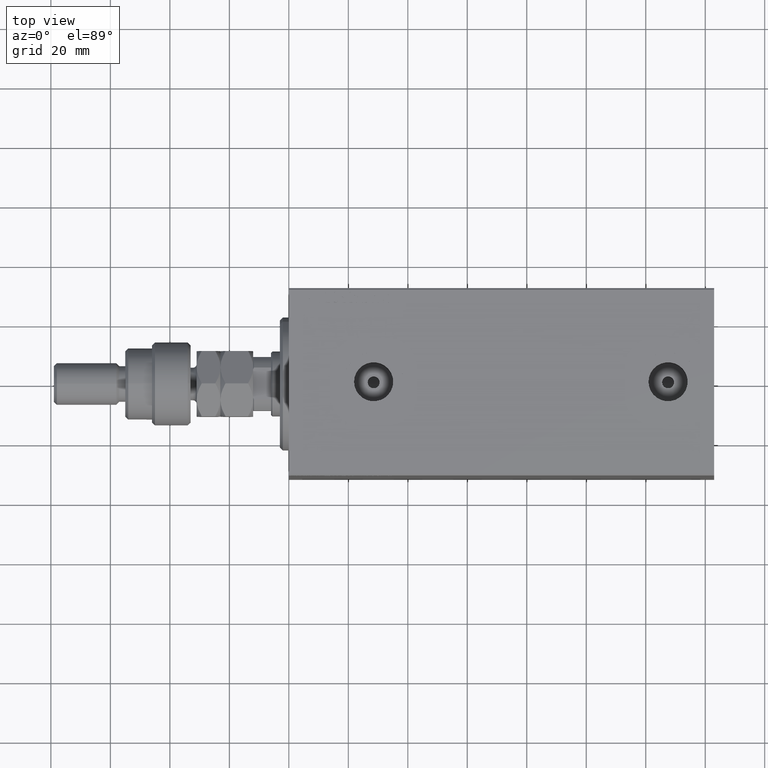
[diagram: clean part render]
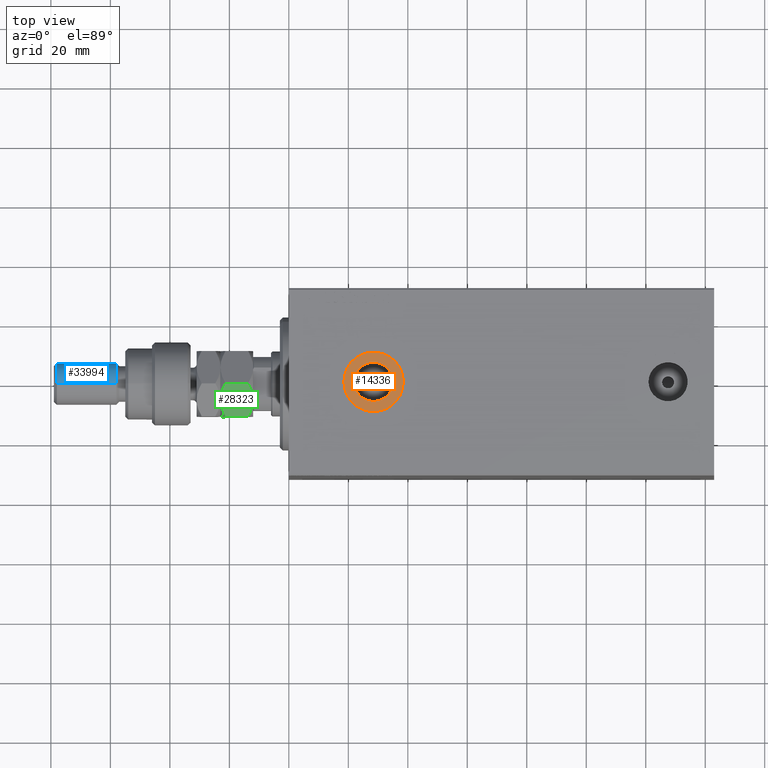
[diagram: same view with three faces highlighted in distinct colors, each labeled with its STEP entity id]
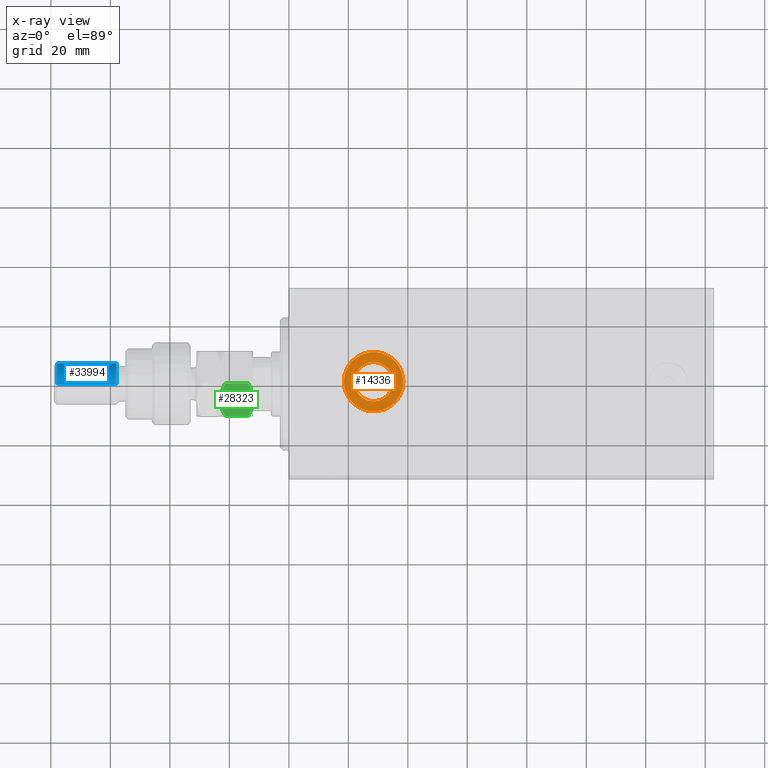
[diagram: x-ray of the same camera — body ghosted, the three highlighted faces saturated]
A machine part, top view with three faces highlighted in distinct colors.
The next image is the same camera in x-ray (body ghosted, the three faces saturated) — at least one of them is partly hidden behind the body in this view.
Their STEP definitions:

[orange] entity #14336 — the highlighted planar face has unit normal (0, 0, 1).
#770 = CARTESIAN_POINT ( 'NONE',  ( 38.50000000000000000, -9.361999711620864936E-15, 42.39999999999999858 ) ) ;
#2456 = DIRECTION ( 'NONE',  ( 1.000000000000000000, 0.000000000000000000, 0.000000000000000000 ) ) ;
#4035 = FACE_OUTER_BOUND ( 'NONE', #14010, .T. ) ;
#4494 = VERTEX_POINT ( 'NONE', #17192 ) ;
#5531 = AXIS2_PLACEMENT_3D ( 'NONE', #45575, #27583, #42022 ) ;
#6486 = DIRECTION ( 'NONE',  ( 0.000000000000000000, 0.000000000000000000, 1.000000000000000000 ) ) ;
#6608 = ORIENTED_EDGE ( 'NONE', *, *, #14099, .T. ) ;
#7358 = ORIENTED_EDGE ( 'NONE', *, *, #24527, .T. ) ;
#8112 = CARTESIAN_POINT ( 'NONE',  ( 28.50000000000000000, -9.361999711620864936E-15, 42.39999999999999858 ) ) ;
#8467 = VERTEX_POINT ( 'NONE', #37358 ) ;
#9058 = ORIENTED_EDGE ( 'NONE', *, *, #19942, .F. ) ;
#9335 = CARTESIAN_POINT ( 'NONE',  ( 28.50000000000000000, -9.361999711620864936E-15, 42.39999999999999858 ) ) ;
#11070 = VERTEX_POINT ( 'NONE', #770 ) ;
#13232 = DIRECTION ( 'NONE',  ( 1.000000000000000000, 0.000000000000000000, 0.000000000000000000 ) ) ;
#14010 = EDGE_LOOP ( 'NONE', ( #6608, #7358 ) ) ;
#14099 = EDGE_CURVE ( 'NONE', #11070, #4494, #33862, .T. ) ;
#14336 = ADVANCED_FACE ( 'NONE', ( #25356, #4035 ), #14701, .T. ) ;
#14701 = PLANE ( 'NONE',  #17996 ) ;
#17192 = CARTESIAN_POINT ( 'NONE',  ( 18.50000000000000355, -8.137352912473510299E-15, 42.39999999999999858 ) ) ;
#17996 = AXIS2_PLACEMENT_3D ( 'NONE', #21586, #42892, #29140 ) ;
#19003 = ORIENTED_EDGE ( 'NONE', *, *, #39466, .F. ) ;
#19720 = DIRECTION ( 'NONE',  ( 1.000000000000000000, 0.000000000000000000, 0.000000000000000000 ) ) ;
#19942 = EDGE_CURVE ( 'NONE', #8467, #29719, #28636, .T. ) ;
#20644 = CIRCLE ( 'NONE', #5531, 6.579999999999999183 ) ;
#20818 = DIRECTION ( 'NONE',  ( 0.000000000000000000, 0.000000000000000000, 1.000000000000000000 ) ) ;
#21586 = CARTESIAN_POINT ( 'NONE',  ( 28.50000000000000000, -9.361999711620864936E-15, 42.39999999999999858 ) ) ;
#24527 = EDGE_CURVE ( 'NONE', #4494, #11070, #29523, .T. ) ;
#25005 = AXIS2_PLACEMENT_3D ( 'NONE', #45673, #20818, #13232 ) ;
#25356 = FACE_BOUND ( 'NONE', #31003, .T. ) ;
#25608 = AXIS2_PLACEMENT_3D ( 'NONE', #9335, #6486, #2456 ) ;
#27583 = DIRECTION ( 'NONE',  ( 0.000000000000000000, 0.000000000000000000, 1.000000000000000000 ) ) ;
#28636 = CIRCLE ( 'NONE', #25608, 6.579999999999999183 ) ;
#29140 = DIRECTION ( 'NONE',  ( 1.000000000000000000, 0.000000000000000000, -0.000000000000000000 ) ) ;
#29523 = CIRCLE ( 'NONE', #25005, 9.999999999999998224 ) ;
#29659 = DIRECTION ( 'NONE',  ( 0.000000000000000000, 0.000000000000000000, 1.000000000000000000 ) ) ;
#29719 = VERTEX_POINT ( 'NONE', #35967 ) ;
#31003 = EDGE_LOOP ( 'NONE', ( #19003, #9058 ) ) ;
#32358 = AXIS2_PLACEMENT_3D ( 'NONE', #8112, #29659, #19720 ) ;
#33862 = CIRCLE ( 'NONE', #32358, 9.999999999999998224 ) ;
#35967 = CARTESIAN_POINT ( 'NONE',  ( 35.07999999999999829, -9.361999711620864936E-15, 42.39999999999999858 ) ) ;
#37358 = CARTESIAN_POINT ( 'NONE',  ( 21.92000000000000171, -8.556182117781907472E-15, 42.39999999999999858 ) ) ;
#39466 = EDGE_CURVE ( 'NONE', #29719, #8467, #20644, .T. ) ;
#42022 = DIRECTION ( 'NONE',  ( 1.000000000000000000, 0.000000000000000000, 0.000000000000000000 ) ) ;
#42892 = DIRECTION ( 'NONE',  ( 0.000000000000000000, 0.000000000000000000, 1.000000000000000000 ) ) ;
#45575 = CARTESIAN_POINT ( 'NONE',  ( 28.50000000000000000, -9.361999711620864936E-15, 42.39999999999999858 ) ) ;
#45673 = CARTESIAN_POINT ( 'NONE',  ( 28.50000000000000000, -9.361999711620864936E-15, 42.39999999999999858 ) ) ;

[blue] entity #33994 — the highlighted cylindrical surface (edge-blend (fillet) strip) has radius 7 mm, axis along (1, -0, -0).
#372 = EDGE_CURVE ( 'NONE', #41653, #39855, #21516, .T. ) ;
#1115 = CARTESIAN_POINT ( 'NONE',  ( 0.000000000000000000, 0.000000000000000000, 46.00000000000000000 ) ) ;
#1285 = AXIS2_PLACEMENT_3D ( 'NONE', #5839, #39841, #33203 ) ;
#1349 = DIRECTION ( 'NONE',  ( -1.000000000000000000, 0.000000000000000000, 0.000000000000000000 ) ) ;
#1606 = CARTESIAN_POINT ( 'NONE',  ( -7.000000000000000000, 0.000000000000000000, 44.99999999999999289 ) ) ;
#3480 = ORIENTED_EDGE ( 'NONE', *, *, #11058, .T. ) ;
#5839 = CARTESIAN_POINT ( 'NONE',  ( 0.000000000000000000, 0.000000000000000000, 44.99999999999999289 ) ) ;
#6246 = AXIS2_PLACEMENT_3D ( 'NONE', #1115, #11766, #1349 ) ;
#6472 = DIRECTION ( 'NONE',  ( -0.000000000000000000, -0.000000000000000000, -1.000000000000000000 ) ) ;
#7701 = VERTEX_POINT ( 'NONE', #1606 ) ;
#7805 = ORIENTED_EDGE ( 'NONE', *, *, #23094, .F. ) ;
#11058 = EDGE_CURVE ( 'NONE', #7701, #35657, #40583, .T. ) ;
#11766 = DIRECTION ( 'NONE',  ( -0.000000000000000000, -0.000000000000000000, -1.000000000000000000 ) ) ;
#15224 = EDGE_LOOP ( 'NONE', ( #3480, #40184, #38627, #7805 ) ) ;
#15801 = CYLINDRICAL_SURFACE ( 'NONE', #6246, 7.000000000000000000 ) ;
#16301 = CARTESIAN_POINT ( 'NONE',  ( -7.000000000000000000, 0.000000000000000000, 24.99999999999998934 ) ) ;
#20455 = CARTESIAN_POINT ( 'NONE',  ( -7.000000000000000000, 0.000000000000000000, 46.00000000000000000 ) ) ;
#21516 = CIRCLE ( 'NONE', #32852, 7.000000000000000000 ) ;
#22505 = CARTESIAN_POINT ( 'NONE',  ( 7.000000000000000000, 8.572527594031473190E-16, 44.99999999999999289 ) ) ;
#23094 = EDGE_CURVE ( 'NONE', #7701, #39855, #35348, .T. ) ;
#24687 = CARTESIAN_POINT ( 'NONE',  ( 0.000000000000000000, 0.000000000000000000, 24.99999999999998934 ) ) ;
#25327 = LINE ( 'NONE', #43323, #25991 ) ;
#25991 = VECTOR ( 'NONE', #46175, 1000.000000000000000 ) ;
#30465 = FACE_OUTER_BOUND ( 'NONE', #15224, .T. ) ;
#30992 = VECTOR ( 'NONE', #6472, 1000.000000000000000 ) ;
#32852 = AXIS2_PLACEMENT_3D ( 'NONE', #24687, #36491, #40047 ) ;
#33203 = DIRECTION ( 'NONE',  ( 1.000000000000000000, 0.000000000000000000, 0.000000000000000000 ) ) ;
#33994 = ADVANCED_FACE ( 'NONE', ( #30465 ), #15801, .T. ) ;
#35348 = LINE ( 'NONE', #20455, #30992 ) ;
#35657 = VERTEX_POINT ( 'NONE', #22505 ) ;
#36491 = DIRECTION ( 'NONE',  ( -0.000000000000000000, -0.000000000000000000, 1.000000000000000000 ) ) ;
#38627 = ORIENTED_EDGE ( 'NONE', *, *, #372, .T. ) ;
#39841 = DIRECTION ( 'NONE',  ( 0.000000000000000000, 0.000000000000000000, -1.000000000000000000 ) ) ;
#39855 = VERTEX_POINT ( 'NONE', #16301 ) ;
#40047 = DIRECTION ( 'NONE',  ( 1.000000000000000000, 0.000000000000000000, 0.000000000000000000 ) ) ;
#40184 = ORIENTED_EDGE ( 'NONE', *, *, #41911, .T. ) ;
#40583 = CIRCLE ( 'NONE', #1285, 7.000000000000000000 ) ;
#40750 = CARTESIAN_POINT ( 'NONE',  ( 7.000000000000000000, 8.572527594031473190E-16, 24.99999999999998934 ) ) ;
#41653 = VERTEX_POINT ( 'NONE', #40750 ) ;
#41911 = EDGE_CURVE ( 'NONE', #35657, #41653, #25327, .T. ) ;
#43323 = CARTESIAN_POINT ( 'NONE',  ( 7.000000000000000000, 8.572527594031473190E-16, 46.00000000000000000 ) ) ;
#46175 = DIRECTION ( 'NONE',  ( -0.000000000000000000, -0.000000000000000000, -1.000000000000000000 ) ) ;

[green] entity #28323 — the highlighted planar face has unit normal (0, 0.5, -0.866).
#175 = CARTESIAN_POINT ( 'NONE',  ( 11.00000000000000000, 2.205563362884370715, 0.2057656002039678633 ) ) ;
#3726 = CARTESIAN_POINT ( 'NONE',  ( 10.99999999999999822, 4.323029509133802684, 0.8096537352537666044 ) ) ;
#4737 = CARTESIAN_POINT ( 'NONE',  ( 11.00000000000000178, 4.344649988696087206, 10.21806660778910114 ) ) ;
#5301 = EDGE_CURVE ( 'NONE', #41330, #41789, #40258, .T. ) ;
#5675 = VERTEX_POINT ( 'NONE', #39316 ) ;
#6010 = CARTESIAN_POINT ( 'NONE',  ( 11.00000000000000000, -0.2746235576716405391, 11.00000000000000355 ) ) ;
#6238 = CARTESIAN_POINT ( 'NONE',  ( 11.00000000000000178, -0.5501206218979368678, 10.98970138300551191 ) ) ;
#6473 = CARTESIAN_POINT ( 'NONE',  ( 11.00000000000000178, -5.349315167928747172, 9.777295308501312121 ) ) ;
#7279 = CARTESIAN_POINT ( 'NONE',  ( 11.00000000000000000, 6.350852961085883486, 1.701705922171761198 ) ) ;
#7403 = VECTOR ( 'NONE', #18779, 1000.000000000000000 ) ;
#7853 = CARTESIAN_POINT ( 'NONE',  ( 11.00000000000000000, 0.000000000000000000, 0.000000000000000000 ) ) ;
#8926 = CARTESIAN_POINT ( 'NONE',  ( 11.00000000000000000, 6.350852961085883486, 9.298294077828240134 ) ) ;
#8933 = EDGE_CURVE ( 'NONE', #17284, #5675, #46805, .T. ) ;
#9497 = CARTESIAN_POINT ( 'NONE',  ( 10.99999999999999467, 0.000000000000000000, 11.00000000000000000 ) ) ;
#11513 = CARTESIAN_POINT ( 'NONE',  ( 11.00000000000000000, 1.102880524211967916, 0.05171427369706949051 ) ) ;
#11606 = CARTESIAN_POINT ( 'NONE',  ( 11.00000000000000178, 1.099784029505284533, 10.95829822225798189 ) ) ;
#12340 = CARTESIAN_POINT ( 'NONE',  ( 10.99999999999999822, -0.5516605423237674888, 3.811648262644349985E-18 ) ) ;
#12616 = EDGE_CURVE ( 'NONE', #5675, #39952, #43726, .T. ) ;
#13104 = CARTESIAN_POINT ( 'NONE',  ( 10.99999999999999822, -2.205563362884370271, 10.79423439979603039 ) ) ;
#14009 = EDGE_CURVE ( 'NONE', #38337, #17284, #32304, .T. ) ;
#14035 = CARTESIAN_POINT ( 'NONE',  ( 11.00000000000000000, -6.350852961085885262, 11.00000000000000000 ) ) ;
#14221 = ORIENTED_EDGE ( 'NONE', *, *, #12616, .F. ) ;
#15865 = ORIENTED_EDGE ( 'NONE', *, *, #14009, .F. ) ;
#16437 = CARTESIAN_POINT ( 'NONE',  ( 11.00000000000000000, -6.350852961085885262, 9.298294077828238358 ) ) ;
#17284 = VERTEX_POINT ( 'NONE', #27571 ) ;
#17643 = DIRECTION ( 'NONE',  ( 0.000000000000000000, 0.000000000000000000, 1.000000000000000000 ) ) ;
#18177 = CARTESIAN_POINT ( 'NONE',  ( 11.00000000000000000, 3.802713407336413276, 0.6276910765349043020 ) ) ;
#18291 = DIRECTION ( 'NONE',  ( -0.000000000000000000, -0.000000000000000000, -1.000000000000000000 ) ) ;
#18548 = CARTESIAN_POINT ( 'NONE',  ( 11.00000000000000000, 6.350852961085883486, 11.00000000000000000 ) ) ;
#18652 = ORIENTED_EDGE ( 'NONE', *, *, #5301, .F. ) ;
#18779 = DIRECTION ( 'NONE',  ( -0.000000000000000000, -0.000000000000000000, -1.000000000000000000 ) ) ;
#19455 = CARTESIAN_POINT ( 'NONE',  ( 11.00000000000000000, -2.731989201781026111, 0.3224669455115847794 ) ) ;
#19533 = EDGE_LOOP ( 'NONE', ( #45800, #15865, #40551, #18652, #40196, #14221 ) ) ;
#20687 = CARTESIAN_POINT ( 'NONE',  ( 10.99999999999999822, -5.856287164594791150, 9.545576976073807174 ) ) ;
#20925 = CARTESIAN_POINT ( 'NONE',  ( 11.00000000000000000, -1.102880524211969027, 10.94828572630293273 ) ) ;
#21162 = CARTESIAN_POINT ( 'NONE',  ( 10.99999999999999822, -4.323029509133800907, 10.19034626474623551 ) ) ;
#21726 = CARTESIAN_POINT ( 'NONE',  ( 11.00000000000000178, 5.856287164594785821, 1.454423023926191938 ) ) ;
#21879 = DIRECTION ( 'NONE',  ( -1.000000000000000000, 0.000000000000000000, 0.000000000000000000 ) ) ;
#22339 = EDGE_CURVE ( 'NONE', #41330, #39952, #29390, .T. ) ;
#22532 = CARTESIAN_POINT ( 'NONE',  ( 11.00000000000000178, -4.344649988696088094, 0.7819333922108973045 ) ) ;
#22744 = CARTESIAN_POINT ( 'NONE',  ( 10.99999999999999467, 0.000000000000000000, 11.00000000000000000 ) ) ;
#24247 = CARTESIAN_POINT ( 'NONE',  ( 11.00000000000000355, -2.743986917173864892, 10.67427553246086447 ) ) ;
#24474 = CARTESIAN_POINT ( 'NONE',  ( 10.99999999999999467, 0.000000000000000000, 11.00000000000000000 ) ) ;
#24688 = B_SPLINE_CURVE_WITH_KNOTS ( 'NONE', 3,
 ( #22744, #32926, #11606, #30082, #26288, #4737, #37173, #40727 ),
 .UNSPECIFIED., .F., .F.,
 ( 4, 2, 2, 4 ),
 ( 0.02548310755563731531, 0.02714502201312677526, 0.02880693647061623522, 0.03213076538559515860 ),
 .UNSPECIFIED. ) ;
#25951 = CARTESIAN_POINT ( 'NONE',  ( 11.00000000000000000, 0.000000000000000000, 0.000000000000000000 ) ) ;
#26074 = CARTESIAN_POINT ( 'NONE',  ( 11.00000000000000000, -5.363576505757326807, 1.208067694507484413 ) ) ;
#26288 = CARTESIAN_POINT ( 'NONE',  ( 11.00000000000000000, 2.731989201781026555, 10.67753305448841772 ) ) ;
#26422 = VECTOR ( 'NONE', #18291, 1000.000000000000000 ) ;
#27571 = CARTESIAN_POINT ( 'NONE',  ( 11.00000000000000000, 6.350852961085883486, 1.701705922171761198 ) ) ;
#27945 = EDGE_CURVE ( 'NONE', #41789, #38337, #24688, .T. ) ;
#28323 = ADVANCED_FACE ( 'NONE', ( #45576 ), #39631, .F. ) ;
#28764 = AXIS2_PLACEMENT_3D ( 'NONE', #42729, #21879, #17643 ) ;
#29276 = CARTESIAN_POINT ( 'NONE',  ( 10.99999999999999822, 0.2746235576716393179, 8.470329472542994146E-18 ) ) ;
#29390 = LINE ( 'NONE', #14035, #26422 ) ;
#29869 = CARTESIAN_POINT ( 'NONE',  ( 10.99999999999999645, -2.189438957741031366, 0.2028253662507153998 ) ) ;
#30082 = CARTESIAN_POINT ( 'NONE',  ( 10.99999999999999822, 2.189438957741029590, 10.79717463374928421 ) ) ;
#31429 = CARTESIAN_POINT ( 'NONE',  ( 11.00000000000000000, -6.350852961085885262, 1.701705922171761864 ) ) ;
#32304 = LINE ( 'NONE', #18548, #7403 ) ;
#32611 = CARTESIAN_POINT ( 'NONE',  ( 11.00000000000000000, 2.743986917173864448, 0.3257244675391384736 ) ) ;
#32926 = CARTESIAN_POINT ( 'NONE',  ( 11.00000000000000178, 0.5516605423237666006, 11.00000000000000355 ) ) ;
#33415 = CARTESIAN_POINT ( 'NONE',  ( 11.00000000000000178, -1.099784029505286975, 0.04170177774201815762 ) ) ;
#36145 = CARTESIAN_POINT ( 'NONE',  ( 11.00000000000000000, 5.349315167928744508, 1.222704691498689877 ) ) ;
#37173 = CARTESIAN_POINT ( 'NONE',  ( 10.99999999999999822, 5.363576505757325918, 9.791932305492514033 ) ) ;
#38337 = VERTEX_POINT ( 'NONE', #8926 ) ;
#38440 = CARTESIAN_POINT ( 'NONE',  ( 11.00000000000000000, -6.350852961085885262, 9.298294077828238358 ) ) ;
#38676 = CARTESIAN_POINT ( 'NONE',  ( 11.00000000000000178, -1.381217716854154398, 10.91695300848610017 ) ) ;
#39138 = CARTESIAN_POINT ( 'NONE',  ( 11.00000000000000000, -3.802713407336412832, 10.37230892346509847 ) ) ;
#39316 = CARTESIAN_POINT ( 'NONE',  ( 11.00000000000000000, 0.000000000000000000, 0.000000000000000000 ) ) ;
#39631 = PLANE ( 'NONE',  #28764 ) ;
#39952 = VERTEX_POINT ( 'NONE', #31429 ) ;
#40196 = ORIENTED_EDGE ( 'NONE', *, *, #22339, .T. ) ;
#40258 = B_SPLINE_CURVE_WITH_KNOTS ( 'NONE', 3,
 ( #38440, #20687, #6473, #21162, #39138, #24247, #13104, #38676, #20925, #6238, #6010, #24474 ),
 .UNSPECIFIED., .F., .F.,
 ( 4, 2, 2, 2, 2, 4 ),
 ( 0.01886453216956117396, 0.02051917601608021016, 0.02217381986259924637, 0.02382846370911827910, 0.02465578563237779547, 0.02548310755563731531 ),
 .UNSPECIFIED. ) ;
#40393 = CARTESIAN_POINT ( 'NONE',  ( 10.99999999999999822, 0.5501206218979356466, 0.01029861699449337656 ) ) ;
#40551 = ORIENTED_EDGE ( 'NONE', *, *, #27945, .F. ) ;
#40727 = CARTESIAN_POINT ( 'NONE',  ( 11.00000000000000000, 6.350852961085883486, 9.298294077828240134 ) ) ;
#40754 = CARTESIAN_POINT ( 'NONE',  ( 11.00000000000000000, -6.350852961085885262, 1.701705922171761864 ) ) ;
#41330 = VERTEX_POINT ( 'NONE', #16437 ) ;
#41789 = VERTEX_POINT ( 'NONE', #9497 ) ;
#42330 = CARTESIAN_POINT ( 'NONE',  ( 11.00000000000000178, 1.381217716854154398, 0.08304699151390024237 ) ) ;
#42729 = CARTESIAN_POINT ( 'NONE',  ( 11.00000000000000000, -6.350852961085885262, 11.00000000000000000 ) ) ;
#43726 = B_SPLINE_CURVE_WITH_KNOTS ( 'NONE', 3,
 ( #7853, #12340, #33415, #29869, #19455, #22532, #26074, #40754 ),
 .UNSPECIFIED., .F., .F.,
 ( 4, 2, 2, 4 ),
 ( 0.02548310755563731184, 0.02714502201312677179, 0.02880693647061623175, 0.03213076538559515166 ),
 .UNSPECIFIED. ) ;
#45576 = FACE_OUTER_BOUND ( 'NONE', #19533, .T. ) ;
#45800 = ORIENTED_EDGE ( 'NONE', *, *, #8933, .F. ) ;
#46805 = B_SPLINE_CURVE_WITH_KNOTS ( 'NONE', 3,
 ( #7279, #21726, #36145, #3726, #18177, #32611, #175, #42330, #11513, #40393, #29276, #25951 ),
 .UNSPECIFIED., .F., .F.,
 ( 4, 2, 2, 2, 2, 4 ),
 ( 0.01886453216956117396, 0.02051917601608021016, 0.02217381986259924290, 0.02382846370911827910, 0.02465578563237779547, 0.02548310755563731184 ),
 .UNSPECIFIED. ) ;